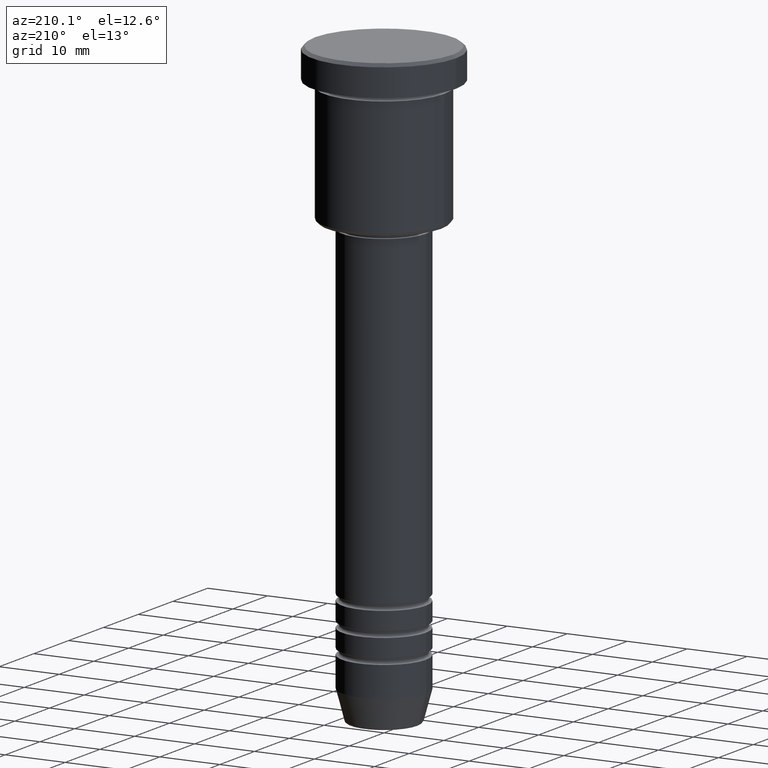
[diagram: clean part render]
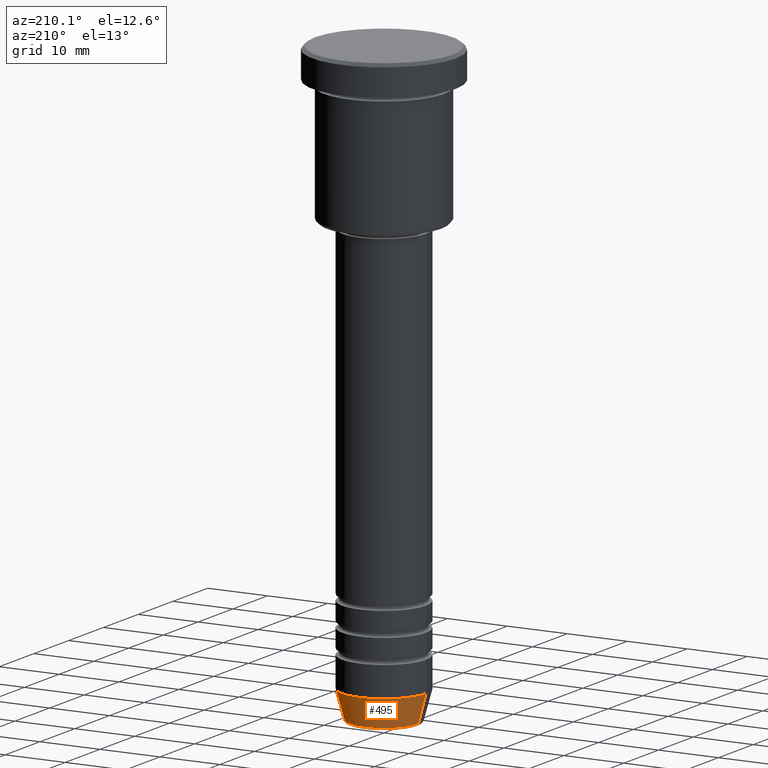
[diagram: same view with one face highlighted and labeled with its STEP entity id]
A machine part, auxiliary view. The second image highlights one B-rep face of the part: STEP entity #495.
In plain terms, the highlighted conical surface has half-angle 15 deg.
Its self-contained STEP definition (entity closure, byte-faithful):
#15 = EDGE_LOOP ( 'NONE', ( #1155, #221, #180, #655 ) ) ;
#28 = EDGE_CURVE ( 'NONE', #371, #132, #993, .T. ) ;
#127 = CIRCLE ( 'NONE', #834, 7.000000000000000888 ) ;
#132 = VERTEX_POINT ( 'NONE', #474 ) ;
#158 = CARTESIAN_POINT ( 'NONE',  ( 5.759553456999433330, 0.000000000000000000, -99.62940952255127058 ) ) ;
#180 = ORIENTED_EDGE ( 'NONE', *, *, #260, .F. ) ;
#181 = DIRECTION ( 'NONE',  ( -0.000000000000000000, -0.000000000000000000, 1.000000000000000000 ) ) ;
#194 = CARTESIAN_POINT ( 'NONE',  ( -7.000000000000000888, 8.572527594031474176E-16, -95.00000000000000000 ) ) ;
#221 = ORIENTED_EDGE ( 'NONE', *, *, #28, .T. ) ;
#260 = EDGE_CURVE ( 'NONE', #1003, #132, #127, .T. ) ;
#277 = EDGE_CURVE ( 'NONE', #680, #1003, #867, .T. ) ;
#337 = DIRECTION ( 'NONE',  ( -0.000000000000000000, -0.000000000000000000, 1.000000000000000000 ) ) ;
#371 = VERTEX_POINT ( 'NONE', #478 ) ;
#392 = VECTOR ( 'NONE', #811, 1000.000000000000000 ) ;
#410 = CARTESIAN_POINT ( 'NONE',  ( 0.000000000000000000, 0.000000000000000000, -95.00000000000000000 ) ) ;
#474 = CARTESIAN_POINT ( 'NONE',  ( -7.000000000000000888, 8.572527594031474176E-16, -95.00000000000000000 ) ) ;
#478 = CARTESIAN_POINT ( 'NONE',  ( -5.759553456999433330, 7.812973149831950787E-16, -99.62940952255127058 ) ) ;
#495 = ADVANCED_FACE ( 'NONE', ( #880 ), #726, .T. ) ;
#524 = DIRECTION ( 'NONE',  ( 0.2588190451025213501, 0.000000000000000000, 0.9659258262890680902 ) ) ;
#578 = CARTESIAN_POINT ( 'NONE',  ( 0.000000000000000000, 0.000000000000000000, -95.00000000000000000 ) ) ;
#599 = DIRECTION ( 'NONE',  ( 1.000000000000000000, 0.000000000000000000, 0.000000000000000000 ) ) ;
#638 = CARTESIAN_POINT ( 'NONE',  ( 0.000000000000000000, 0.000000000000000000, -99.62940952255127058 ) ) ;
#655 = ORIENTED_EDGE ( 'NONE', *, *, #277, .F. ) ;
#680 = VERTEX_POINT ( 'NONE', #158 ) ;
#704 = AXIS2_PLACEMENT_3D ( 'NONE', #638, #181, #791 ) ;
#717 = EDGE_CURVE ( 'NONE', #680, #371, #937, .T. ) ;
#726 = CONICAL_SURFACE ( 'NONE', #854, 7.000000000000000888, 0.2617993877991500740 ) ;
#743 = VECTOR ( 'NONE', #524, 1000.000000000000000 ) ;
#791 = DIRECTION ( 'NONE',  ( 1.000000000000000000, 0.000000000000000000, 0.000000000000000000 ) ) ;
#801 = DIRECTION ( 'NONE',  ( 1.000000000000000000, 0.000000000000000000, 0.000000000000000000 ) ) ;
#811 = DIRECTION ( 'NONE',  ( -0.2588190451025213501, 3.169619151431772337E-17, 0.9659258262890680902 ) ) ;
#834 = AXIS2_PLACEMENT_3D ( 'NONE', #410, #337, #801 ) ;
#854 = AXIS2_PLACEMENT_3D ( 'NONE', #578, #948, #599 ) ;
#867 = LINE ( 'NONE', #1052, #743 ) ;
#880 = FACE_OUTER_BOUND ( 'NONE', #15, .T. ) ;
#937 = CIRCLE ( 'NONE', #704, 5.759553456999433330 ) ;
#945 = CARTESIAN_POINT ( 'NONE',  ( 7.000000000000000888, 0.000000000000000000, -95.00000000000000000 ) ) ;
#948 = DIRECTION ( 'NONE',  ( -0.000000000000000000, -0.000000000000000000, 1.000000000000000000 ) ) ;
#993 = LINE ( 'NONE', #194, #392 ) ;
#1003 = VERTEX_POINT ( 'NONE', #945 ) ;
#1052 = CARTESIAN_POINT ( 'NONE',  ( 7.000000000000000888, 0.000000000000000000, -95.00000000000000000 ) ) ;
#1155 = ORIENTED_EDGE ( 'NONE', *, *, #717, .T. ) ;